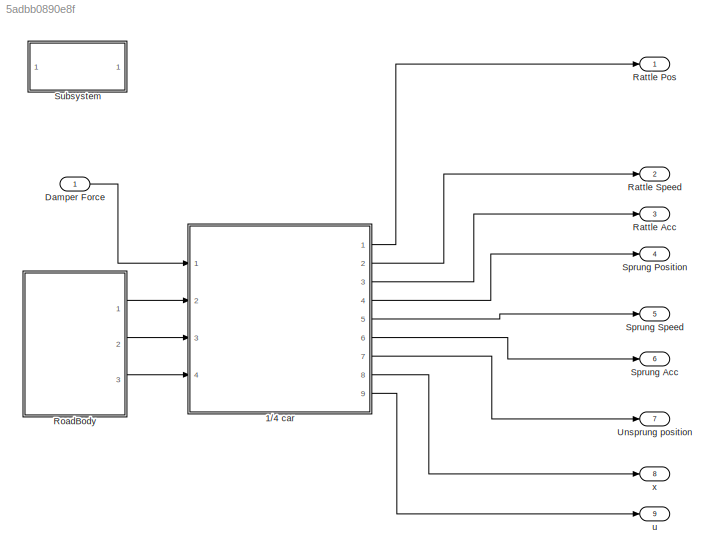
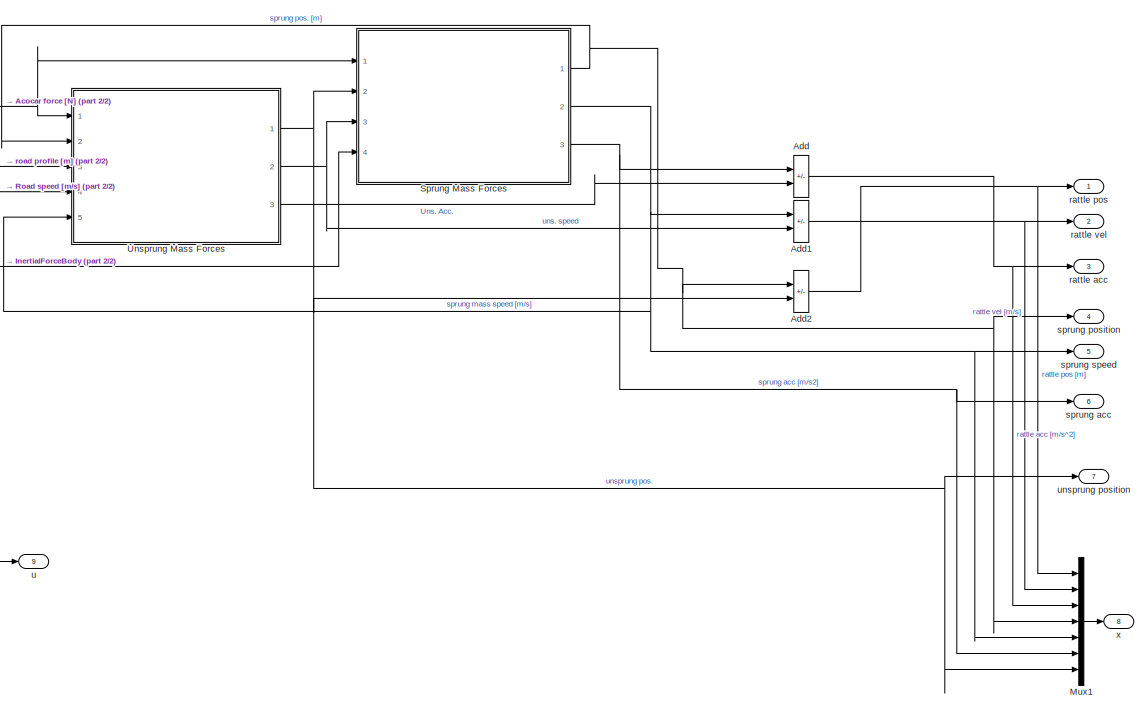
[diagram: 1/4 car - part 1/2, center side, full height]
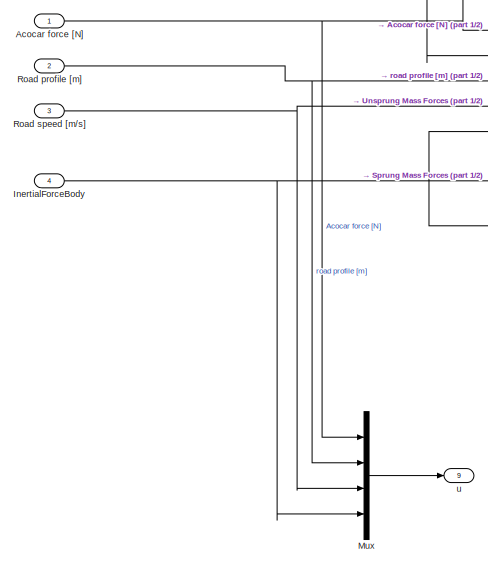
[diagram: 1/4 car - part 2/2, left side, full height]
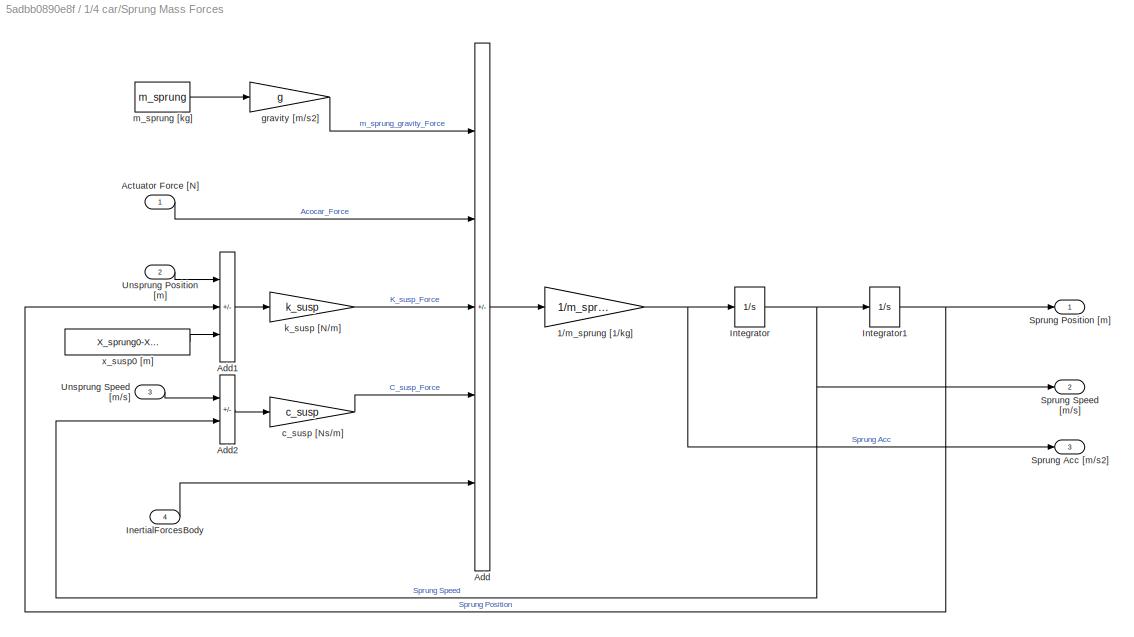
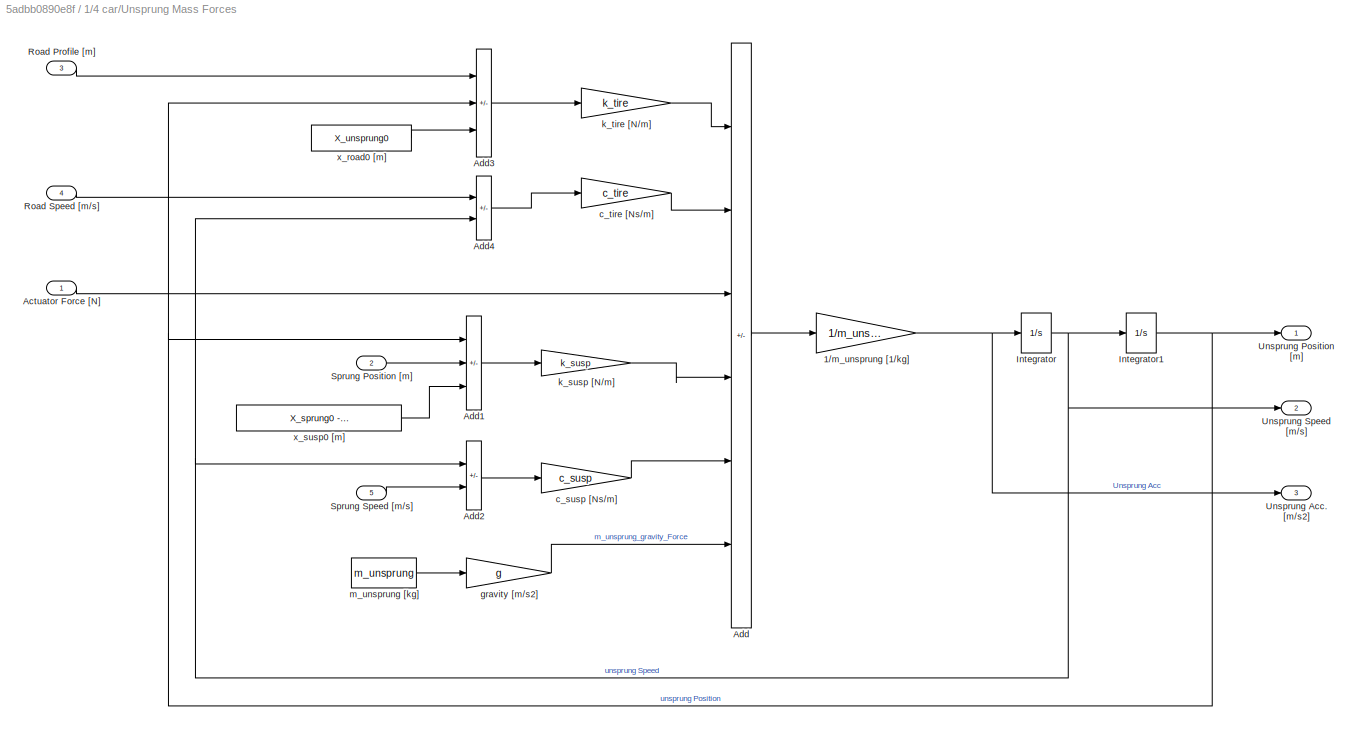
MODEL slx_5adbb0890e8f
KIND model
CONFIG AbsTol = auto
CONFIG EnableMultiTasking = off
CONFIG FixedStep = 0.001
CONFIG MaxStep = auto
CONFIG MinStep = auto
CONFIG RelTol = 1e-3
CONFIG SampleTimeConstraint = Unconstrained
CONFIG SolverName = ode1
CONFIG StartTime = 0.0
CONFIG StopTime = inf
WORKSPACE source: mxarray member
WORKSPACE Sig: Simulink.Signal (value not decoded)
WORKSPACE Sig1: Simulink.Signal (value not decoded)
WORKSPACE Sig2: Simulink.Signal (value not decoded)
BLOCK [SubSystem] 1//4 car
  Ports = [4, 9]
  RequestExecContextInheritance = off
BLOCK [Inport] 1//4 car/Acocar force [N]
BLOCK [Sum] 1//4 car/Add
  IconShape = rectangular
  Inputs = +-
  Ports = [2, 1]
BLOCK [Sum] 1//4 car/Add1
  IconShape = rectangular
  Inputs = +-
  Ports = [2, 1]
BLOCK [Sum] 1//4 car/Add2
  IconShape = rectangular
  Inputs = +-
  Ports = [2, 1]
BLOCK [Inport] 1//4 car/InertialForceBody
  Port = 4
BLOCK [Mux] 1//4 car/Mux
  DisplayOption = bar
  Ports = [4, 1]
BLOCK [Mux] 1//4 car/Mux1
  DisplayOption = bar
  Inputs = 7
  Ports = [7, 1]
BLOCK [Inport] 1//4 car/Road profile [m]
  Port = 2
BLOCK [Inport] 1//4 car/Road speed [m//s]
  Port = 3
BLOCK [SubSystem] 1//4 car/Sprung Mass Forces
  Ports = [4, 3]
  RequestExecContextInheritance = off
BLOCK [Gain] 1//4 car/Sprung Mass Forces/1//m_sprung [1//kg]
  Gain = 1/m_sprung
BLOCK [Inport] 1//4 car/Sprung Mass Forces/Actuator Force [N]
BLOCK [Sum] 1//4 car/Sprung Mass Forces/Add
  IconShape = rectangular
  Inputs = -++++
  Ports = [5, 1]
BLOCK [Sum] 1//4 car/Sprung Mass Forces/Add1
  IconShape = rectangular
  Inputs = +-+
  Ports = [3, 1]
BLOCK [Sum] 1//4 car/Sprung Mass Forces/Add2
  IconShape = rectangular
  Inputs = +-
  Ports = [2, 1]
BLOCK [Inport] 1//4 car/Sprung Mass Forces/InertialForcesBody
  Port = 4
BLOCK [Integrator] 1//4 car/Sprung Mass Forces/Integrator
  Ports = [1, 1]
BLOCK [Integrator] 1//4 car/Sprung Mass Forces/Integrator1
  InitialCondition = X_sprung0
  LowerSaturationLimit = -0.1
  Ports = [1, 1]
  UpperSaturationLimit = 0.5
BLOCK [Outport] 1//4 car/Sprung Mass Forces/Sprung Acc [m//s2]
  Port = 3
BLOCK [Outport] 1//4 car/Sprung Mass Forces/Sprung Position [m]
BLOCK [Outport] 1//4 car/Sprung Mass Forces/Sprung Speed  [m//s]
  Port = 2
BLOCK [Inport] 1//4 car/Sprung Mass Forces/Unsprung Position [m]
  Port = 2
BLOCK [Inport] 1//4 car/Sprung Mass Forces/Unsprung Speed [m//s]
  Port = 3
BLOCK [Gain] 1//4 car/Sprung Mass Forces/c_susp [Ns//m]
  Gain = c_susp
BLOCK [Gain] 1//4 car/Sprung Mass Forces/gravity [m//s2]
  Gain = g
BLOCK [Gain] 1//4 car/Sprung Mass Forces/k_susp [N//m]
  Gain = k_susp
BLOCK [Constant] 1//4 car/Sprung Mass Forces/m_sprung [kg]
  Value = m_sprung
BLOCK [Constant] 1//4 car/Sprung Mass Forces/x_susp0 [m]
  Value = X_sprung0-X_unsprung0
BLOCK [SubSystem] 1//4 car/Unsprung Mass Forces
  Ports = [5, 3]
  RequestExecContextInheritance = off
BLOCK [Gain] 1//4 car/Unsprung Mass Forces/1//m_unsprung [1//kg]
  Gain = 1/m_unsprung
BLOCK [Inport] 1//4 car/Unsprung Mass Forces/Actuator Force [N]
BLOCK [Sum] 1//4 car/Unsprung Mass Forces/Add
  IconShape = rectangular
  Inputs = ++----
  Ports = [6, 1]
BLOCK [Sum] 1//4 car/Unsprung Mass Forces/Add1
  IconShape = rectangular
  Inputs = +-+
  Ports = [3, 1]
BLOCK [Sum] 1//4 car/Unsprung Mass Forces/Add2
  IconShape = rectangular
  Inputs = +-
  Ports = [2, 1]
BLOCK [Sum] 1//4 car/Unsprung Mass Forces/Add3
  IconShape = rectangular
  Inputs = +-+
  Ports = [3, 1]
BLOCK [Sum] 1//4 car/Unsprung Mass Forces/Add4
  IconShape = rectangular
  Inputs = +-
  Ports = [2, 1]
BLOCK [Integrator] 1//4 car/Unsprung Mass Forces/Integrator
  Ports = [1, 1]
BLOCK [Integrator] 1//4 car/Unsprung Mass Forces/Integrator1
  InitialCondition = X_unsprung0
  LowerSaturationLimit = 0
  Ports = [1, 1]
  UpperSaturationLimit = 0.2
BLOCK [Inport] 1//4 car/Unsprung Mass Forces/Road Profile [m]
  Port = 3
BLOCK [Inport] 1//4 car/Unsprung Mass Forces/Road Speed [m//s]
  Port = 4
BLOCK [Inport] 1//4 car/Unsprung Mass Forces/Sprung Position [m]
  Port = 2
BLOCK [Inport] 1//4 car/Unsprung Mass Forces/Sprung Speed [m//s]
  Port = 5
BLOCK [Outport] 1//4 car/Unsprung Mass Forces/Unsprung Acc. [m//s2]
  Port = 3
BLOCK [Outport] 1//4 car/Unsprung Mass Forces/Unsprung Position [m]
BLOCK [Outport] 1//4 car/Unsprung Mass Forces/Unsprung Speed [m//s]
  Port = 2
BLOCK [Gain] 1//4 car/Unsprung Mass Forces/c_susp [Ns//m]
  Gain = c_susp
BLOCK [Gain] 1//4 car/Unsprung Mass Forces/c_tire [Ns//m]
  Gain = c_tire
BLOCK [Gain] 1//4 car/Unsprung Mass Forces/gravity [m//s2]
  Gain = g
BLOCK [Gain] 1//4 car/Unsprung Mass Forces/k_susp [N//m]
  Gain = k_susp
BLOCK [Gain] 1//4 car/Unsprung Mass Forces/k_tire [N//m]
  Gain = k_tire
BLOCK [Constant] 1//4 car/Unsprung Mass Forces/m_unsprung [kg]
  Value = m_unsprung
BLOCK [Constant] 1//4 car/Unsprung Mass Forces/x_road0 [m]
  Value = X_unsprung0
BLOCK [Constant] 1//4 car/Unsprung Mass Forces/x_susp0 [m]
  Value = X_sprung0 -X_unsprung0
BLOCK [Outport] 1//4 car/rattle acc
  Port = 3
BLOCK [Outport] 1//4 car/rattle pos
BLOCK [Outport] 1//4 car/rattle vel
  Port = 2
BLOCK [Outport] 1//4 car/sprung acc
  Port = 6
BLOCK [Outport] 1//4 car/sprung position
  Port = 4
BLOCK [Outport] 1//4 car/sprung speed
  Port = 5
BLOCK [Outport] 1//4 car/u
  Port = 9
BLOCK [Outport] 1//4 car/unsprung position
  Port = 7
BLOCK [Outport] 1//4 car/x
  Port = 8
BLOCK [Inport] Damper Force
BLOCK [Outport] Rattle Acc
  Port = 3
BLOCK [Outport] Rattle Pos
BLOCK [Outport] Rattle Speed
  Port = 2
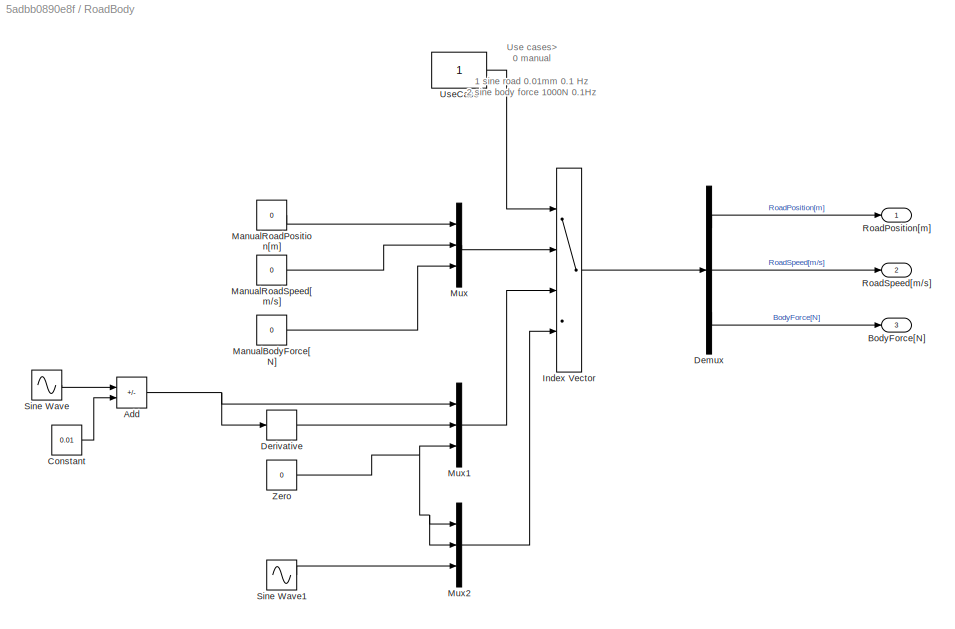
BLOCK [SubSystem] RoadBody
  Ports = [0, 3]
  RequestExecContextInheritance = off
BLOCK [Sum] RoadBody/Add
  IconShape = rectangular
  Inputs = +-
  Ports = [2, 1]
BLOCK [Outport] RoadBody/BodyForce[N]
  Port = 3
BLOCK [Constant] RoadBody/Constant
  Value = 0.01
BLOCK [Demux] RoadBody/Demux
  Outputs = 3
  Ports = [1, 3]
BLOCK [Derivative] RoadBody/Derivative
BLOCK [MultiPortSwitch] RoadBody/Index Vector
  DataPortOrder = Zero-based contiguous
  InputSameDT = off
  Ports = [4, 1]
  SaturateOnIntegerOverflow = off
  zeroidx = on
BLOCK [Constant] RoadBody/ManualBodyForce[N]
  Value = 0
BLOCK [Constant] RoadBody/ManualRoadPosition[m]
  Value = 0
BLOCK [Constant] RoadBody/ManualRoadSpeed[m//s]
  Value = 0
BLOCK [Mux] RoadBody/Mux
  DisplayOption = bar
  Inputs = 3
  Ports = [3, 1]
BLOCK [Mux] RoadBody/Mux1
  DisplayOption = bar
  Inputs = 3
  Ports = [3, 1]
BLOCK [Mux] RoadBody/Mux2
  DisplayOption = bar
  Inputs = 3
  Ports = [3, 1]
BLOCK [Outport] RoadBody/RoadPosition[m]
BLOCK [Outport] RoadBody/RoadSpeed[m//s]
  Port = 2
BLOCK [Sin] RoadBody/Sine Wave
  Amplitude = 0.01
  Frequency = 5*(2*pi)
  Phase = pi/2
  Ports = [0, 1]
  SampleTime = 0
BLOCK [Sin] RoadBody/Sine Wave1
  Amplitude = 0.01
  Frequency = 0.2*pi
  Ports = [0, 1]
  SampleTime = 0
BLOCK [Constant] RoadBody/UseCase
BLOCK [Constant] RoadBody/Zero
  Value = 0
BLOCK [Outport] Sprung Acc
  Port = 6
BLOCK [Outport] Sprung Position
  Port = 4
BLOCK [Outport] Sprung Speed
  Port = 5
BLOCK [SubSystem] Subsystem
  OpenFcn = k_tire = 225400;  %200000 in literature\nc_tire = 100;        % Estimated. In literatures 6N\nk_susp =  25000;  % 15000 in literature\nc_susp = 400;       %1429 Ns/m in literature\ng = 0 % 9.8; Removed to avoid initialization problems\nm_unsprung = 66;\nm_sprung = 449.25;\nX_sprung0  = .5;\nX_unsprung0  = .1;\ndelayTimeCarToDamper =  0.002;\n%InitQuarterCarCompensatorScript;\n%Amplitude =.01;
  Ports = []
  RequestExecContextInheritance = off
BLOCK [Outport] Unsprung position
  Port = 7
BLOCK [Outport] u
  Port = 9
BLOCK [Outport] x
  Port = 8
ANNOTATION RoadBody: Use cases> 0 manual 1 sine road 0.01mm 0.1 Hz 2 sine body force 1000N 0.1Hz
NET 1//4 car/Acocar force [N]:1 -> 1//4 car/Mux:1, 1//4 car/Sprung Mass Forces:1, 1//4 car/Unsprung Mass Forces:1
NET 1//4 car/Add1:1 -> 1//4 car/Mux1:2, 1//4 car/rattle vel:1
NET 1//4 car/Add2:1 -> 1//4 car/Mux1:1, 1//4 car/rattle pos:1
NET 1//4 car/Add:1 -> 1//4 car/Mux1:3, 1//4 car/rattle acc:1
NET 1//4 car/InertialForceBody:1 -> 1//4 car/Mux:4, 1//4 car/Sprung Mass Forces:4
LINE 1//4 car/Mux1:1 -> 1//4 car/x:1
LINE 1//4 car/Mux:1 -> 1//4 car/u:1
NET 1//4 car/Road profile [m]:1 -> 1//4 car/Mux:2, 1//4 car/Unsprung Mass Forces:3
NET 1//4 car/Road speed [m//s]:1 -> 1//4 car/Mux:3, 1//4 car/Unsprung Mass Forces:4
NET 1//4 car/Sprung Mass Forces/1//m_sprung [1//kg]:1 -> 1//4 car/Sprung Mass Forces/Integrator:1, 1//4 car/Sprung Mass Forces/Sprung Acc [m//s2]:1
LINE 1//4 car/Sprung Mass Forces/Actuator Force [N]:1 -> 1//4 car/Sprung Mass Forces/Add:2
LINE 1//4 car/Sprung Mass Forces/Add1:1 -> 1//4 car/Sprung Mass Forces/k_susp [N//m]:1
LINE 1//4 car/Sprung Mass Forces/Add2:1 -> 1//4 car/Sprung Mass Forces/c_susp [Ns//m]:1
LINE 1//4 car/Sprung Mass Forces/Add:1 -> 1//4 car/Sprung Mass Forces/1//m_sprung [1//kg]:1
LINE 1//4 car/Sprung Mass Forces/InertialForcesBody:1 -> 1//4 car/Sprung Mass Forces/Add:5
NET 1//4 car/Sprung Mass Forces/Integrator1:1 -> 1//4 car/Sprung Mass Forces/Add1:2, 1//4 car/Sprung Mass Forces/Sprung Position [m]:1
NET 1//4 car/Sprung Mass Forces/Integrator:1 -> 1//4 car/Sprung Mass Forces/Add2:2, 1//4 car/Sprung Mass Forces/Integrator1:1, 1//4 car/Sprung Mass Forces/Sprung Speed  [m//s]:1
LINE 1//4 car/Sprung Mass Forces/Unsprung Position [m]:1 -> 1//4 car/Sprung Mass Forces/Add1:1
LINE 1//4 car/Sprung Mass Forces/Unsprung Speed [m//s]:1 -> 1//4 car/Sprung Mass Forces/Add2:1
LINE 1//4 car/Sprung Mass Forces/c_susp [Ns//m]:1 -> 1//4 car/Sprung Mass Forces/Add:4
LINE 1//4 car/Sprung Mass Forces/gravity [m//s2]:1 -> 1//4 car/Sprung Mass Forces/Add:1
LINE 1//4 car/Sprung Mass Forces/k_susp [N//m]:1 -> 1//4 car/Sprung Mass Forces/Add:3
LINE 1//4 car/Sprung Mass Forces/m_sprung [kg]:1 -> 1//4 car/Sprung Mass Forces/gravity [m//s2]:1
LINE 1//4 car/Sprung Mass Forces/x_susp0 [m]:1 -> 1//4 car/Sprung Mass Forces/Add1:3
NET 1//4 car/Sprung Mass Forces:1 -> 1//4 car/Add2:1, 1//4 car/Mux1:4, 1//4 car/Unsprung Mass Forces:2, 1//4 car/sprung position:1
NET 1//4 car/Sprung Mass Forces:2 -> 1//4 car/Add1:1, 1//4 car/Mux1:5, 1//4 car/Unsprung Mass Forces:5, 1//4 car/sprung speed:1
NET 1//4 car/Sprung Mass Forces:3 -> 1//4 car/Add:1, 1//4 car/Mux1:6, 1//4 car/sprung acc:1
NET 1//4 car/Unsprung Mass Forces/1//m_unsprung [1//kg]:1 -> 1//4 car/Unsprung Mass Forces/Integrator:1, 1//4 car/Unsprung Mass Forces/Unsprung Acc. [m//s2]:1
LINE 1//4 car/Unsprung Mass Forces/Actuator Force [N]:1 -> 1//4 car/Unsprung Mass Forces/Add:3
LINE 1//4 car/Unsprung Mass Forces/Add1:1 -> 1//4 car/Unsprung Mass Forces/k_susp [N//m]:1
LINE 1//4 car/Unsprung Mass Forces/Add2:1 -> 1//4 car/Unsprung Mass Forces/c_susp [Ns//m]:1
LINE 1//4 car/Unsprung Mass Forces/Add3:1 -> 1//4 car/Unsprung Mass Forces/k_tire [N//m]:1
LINE 1//4 car/Unsprung Mass Forces/Add4:1 -> 1//4 car/Unsprung Mass Forces/c_tire [Ns//m]:1
LINE 1//4 car/Unsprung Mass Forces/Add:1 -> 1//4 car/Unsprung Mass Forces/1//m_unsprung [1//kg]:1
NET 1//4 car/Unsprung Mass Forces/Integrator1:1 -> 1//4 car/Unsprung Mass Forces/Add1:1, 1//4 car/Unsprung Mass Forces/Add3:2, 1//4 car/Unsprung Mass Forces/Unsprung Position [m]:1
NET 1//4 car/Unsprung Mass Forces/Integrator:1 -> 1//4 car/Unsprung Mass Forces/Add2:1, 1//4 car/Unsprung Mass Forces/Add4:2, 1//4 car/Unsprung Mass Forces/Integrator1:1, 1//4 car/Unsprung Mass Forces/Unsprung Speed [m//s]:1
LINE 1//4 car/Unsprung Mass Forces/Road Profile [m]:1 -> 1//4 car/Unsprung Mass Forces/Add3:1
LINE 1//4 car/Unsprung Mass Forces/Road Speed [m//s]:1 -> 1//4 car/Unsprung Mass Forces/Add4:1
LINE 1//4 car/Unsprung Mass Forces/Sprung Position [m]:1 -> 1//4 car/Unsprung Mass Forces/Add1:2
LINE 1//4 car/Unsprung Mass Forces/Sprung Speed [m//s]:1 -> 1//4 car/Unsprung Mass Forces/Add2:2
LINE 1//4 car/Unsprung Mass Forces/c_susp [Ns//m]:1 -> 1//4 car/Unsprung Mass Forces/Add:5
LINE 1//4 car/Unsprung Mass Forces/c_tire [Ns//m]:1 -> 1//4 car/Unsprung Mass Forces/Add:2
LINE 1//4 car/Unsprung Mass Forces/gravity [m//s2]:1 -> 1//4 car/Unsprung Mass Forces/Add:6
LINE 1//4 car/Unsprung Mass Forces/k_susp [N//m]:1 -> 1//4 car/Unsprung Mass Forces/Add:4
LINE 1//4 car/Unsprung Mass Forces/k_tire [N//m]:1 -> 1//4 car/Unsprung Mass Forces/Add:1
LINE 1//4 car/Unsprung Mass Forces/m_unsprung [kg]:1 -> 1//4 car/Unsprung Mass Forces/gravity [m//s2]:1
LINE 1//4 car/Unsprung Mass Forces/x_road0 [m]:1 -> 1//4 car/Unsprung Mass Forces/Add3:3
LINE 1//4 car/Unsprung Mass Forces/x_susp0 [m]:1 -> 1//4 car/Unsprung Mass Forces/Add1:3
NET 1//4 car/Unsprung Mass Forces:1 -> 1//4 car/Add2:2, 1//4 car/Mux1:7, 1//4 car/Sprung Mass Forces:2, 1//4 car/unsprung position:1
NET 1//4 car/Unsprung Mass Forces:2 -> 1//4 car/Add1:2, 1//4 car/Sprung Mass Forces:3
LINE 1//4 car/Unsprung Mass Forces:3 -> 1//4 car/Add:2
LINE 1//4 car:1 -> Rattle Pos:1
LINE 1//4 car:2 -> Rattle Speed:1
LINE 1//4 car:3 -> Rattle Acc:1
LINE 1//4 car:4 -> Sprung Position:1
LINE 1//4 car:5 -> Sprung Speed:1
LINE 1//4 car:6 -> Sprung Acc:1
LINE 1//4 car:7 -> Unsprung position:1
LINE 1//4 car:8 -> x:1
LINE 1//4 car:9 -> u:1
LINE Damper Force:1 -> 1//4 car:1
NET RoadBody/Add:1 -> RoadBody/Derivative:1, RoadBody/Mux1:1
LINE RoadBody/Constant:1 -> RoadBody/Add:2
LINE RoadBody/Demux:1 -> RoadBody/RoadPosition[m]:1
LINE RoadBody/Demux:2 -> RoadBody/RoadSpeed[m//s]:1
LINE RoadBody/Demux:3 -> RoadBody/BodyForce[N]:1
LINE RoadBody/Derivative:1 -> RoadBody/Mux1:2
LINE RoadBody/Index Vector:1 -> RoadBody/Demux:1
LINE RoadBody/ManualBodyForce[N]:1 -> RoadBody/Mux:3
LINE RoadBody/ManualRoadPosition[m]:1 -> RoadBody/Mux:1
LINE RoadBody/ManualRoadSpeed[m//s]:1 -> RoadBody/Mux:2
LINE RoadBody/Mux1:1 -> RoadBody/Index Vector:3
LINE RoadBody/Mux2:1 -> RoadBody/Index Vector:4
LINE RoadBody/Mux:1 -> RoadBody/Index Vector:2
LINE RoadBody/Sine Wave1:1 -> RoadBody/Mux2:3
LINE RoadBody/Sine Wave:1 -> RoadBody/Add:1
LINE RoadBody/UseCase:1 -> RoadBody/Index Vector:1
NET RoadBody/Zero:1 -> RoadBody/Mux1:3, RoadBody/Mux2:1, RoadBody/Mux2:2
LINE RoadBody:1 -> 1//4 car:2
LINE RoadBody:2 -> 1//4 car:3
LINE RoadBody:3 -> 1//4 car:4
note: NET lines group one-source signal fan-out (src -> all destinations, sorted); 1:1 wires keep LINE
